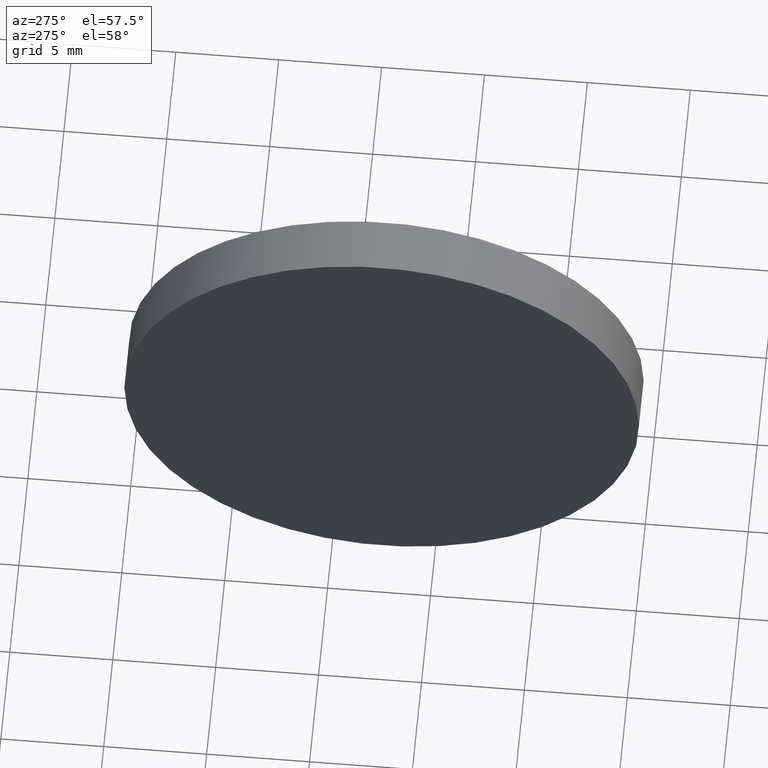
[diagram: clean part render]
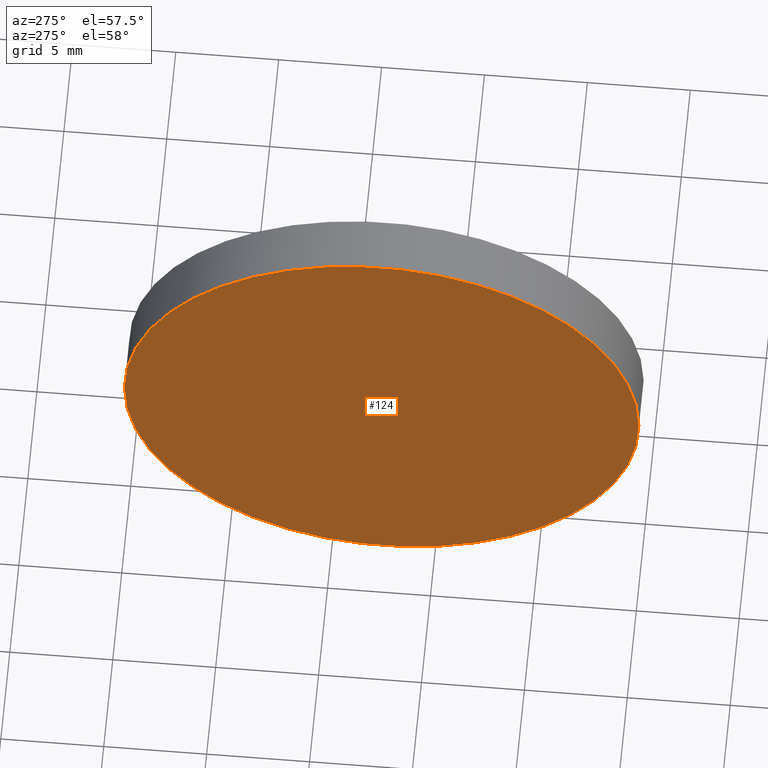
[diagram: same view with one face highlighted and labeled with its STEP entity id]
A machine part, auxiliary view. The second image highlights one B-rep face of the part: STEP entity #124.
In plain terms, the highlighted planar face has unit normal (1, -0, 0).
Its self-contained STEP definition (entity closure, byte-faithful):
#4 = DIRECTION ( 'NONE',  ( 1.000000000000000000, -7.636108817321419600E-016, 0.0000000000000000000 ) ) ;
#6 = DIRECTION ( 'NONE',  ( 7.636108817321419600E-016, 1.000000000000000000, 0.0000000000000000000 ) ) ;
#8 = ORIENTED_EDGE ( 'NONE', *, *, #110, .T. ) ;
#13 = EDGE_LOOP ( 'NONE', ( #113, #8 ) ) ;
#17 = AXIS2_PLACEMENT_3D ( 'NONE', #62, #158, #135 ) ;
#18 = CARTESIAN_POINT ( 'NONE',  ( 57.35819015802111700, 45.07872591329309100, 1.530808498934191900E-015 ) ) ;
#23 = VERTEX_POINT ( 'NONE', #33 ) ;
#28 = EDGE_CURVE ( 'NONE', #23, #41, #80, .T. ) ;
#30 = CIRCLE ( 'NONE', #17, 12.49999999999999600 ) ;
#32 = CARTESIAN_POINT ( 'NONE',  ( 57.35819015802111000, 32.57872591329309800, 0.0000000000000000000 ) ) ;
#33 = CARTESIAN_POINT ( 'NONE',  ( 57.35819015802110200, 20.07872591329309800, 0.0000000000000000000 ) ) ;
#39 = FACE_OUTER_BOUND ( 'NONE', #13, .T. ) ;
#41 = VERTEX_POINT ( 'NONE', #18 ) ;
#62 = CARTESIAN_POINT ( 'NONE',  ( 57.35819015802111000, 32.57872591329309800, 0.0000000000000000000 ) ) ;
#67 = DIRECTION ( 'NONE',  ( -1.000000000000000000, 7.636108817321419600E-016, -0.0000000000000000000 ) ) ;
#71 = AXIS2_PLACEMENT_3D ( 'NONE', #77, #4, #6 ) ;
#77 = CARTESIAN_POINT ( 'NONE',  ( 57.35819015802111000, 32.57872591329309100, 0.0000000000000000000 ) ) ;
#80 = CIRCLE ( 'NONE', #151, 12.49999999999999600 ) ;
#96 = DIRECTION ( 'NONE',  ( -5.551115123125784700E-016, -1.000000000000000000, 0.0000000000000000000 ) ) ;
#104 = PLANE ( 'NONE',  #71 ) ;
#110 = EDGE_CURVE ( 'NONE', #41, #23, #30, .T. ) ;
#113 = ORIENTED_EDGE ( 'NONE', *, *, #28, .T. ) ;
#124 = ADVANCED_FACE ( 'NONE', ( #39 ), #104, .F. ) ;
#135 = DIRECTION ( 'NONE',  ( -5.551115123125784700E-016, -1.000000000000000000, 0.0000000000000000000 ) ) ;
#151 = AXIS2_PLACEMENT_3D ( 'NONE', #32, #67, #96 ) ;
#158 = DIRECTION ( 'NONE',  ( -1.000000000000000000, 7.636108817321419600E-016, -0.0000000000000000000 ) ) ;